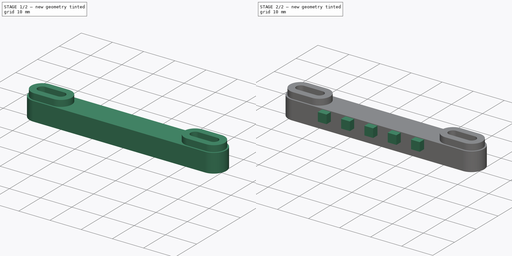
[diagram: build sequence overview — one tinted view per stage of 2, left to right]
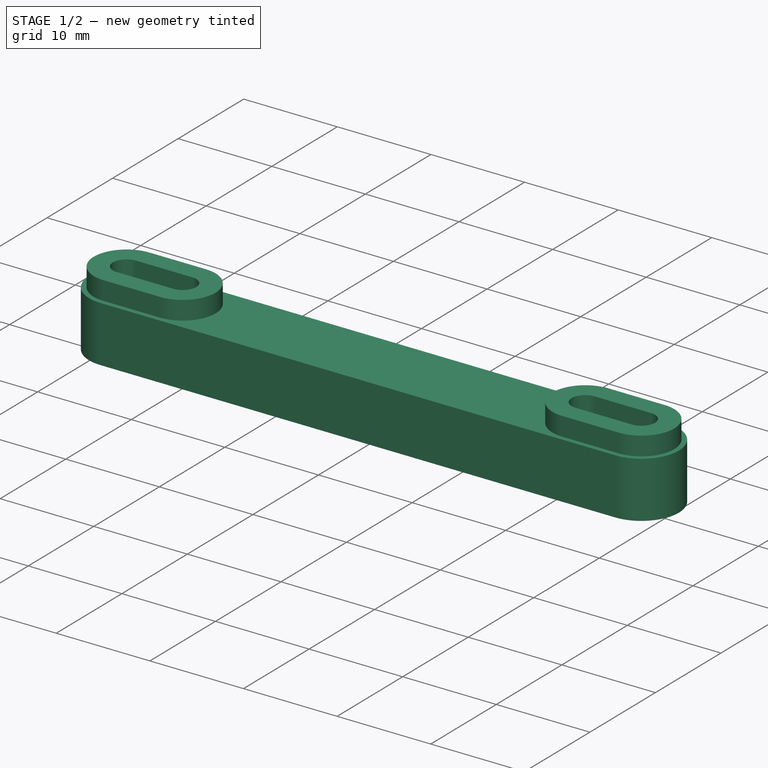
[diagram: stage 1 of 2 — iso view after this stage's code; geometry added in this stage tinted green]
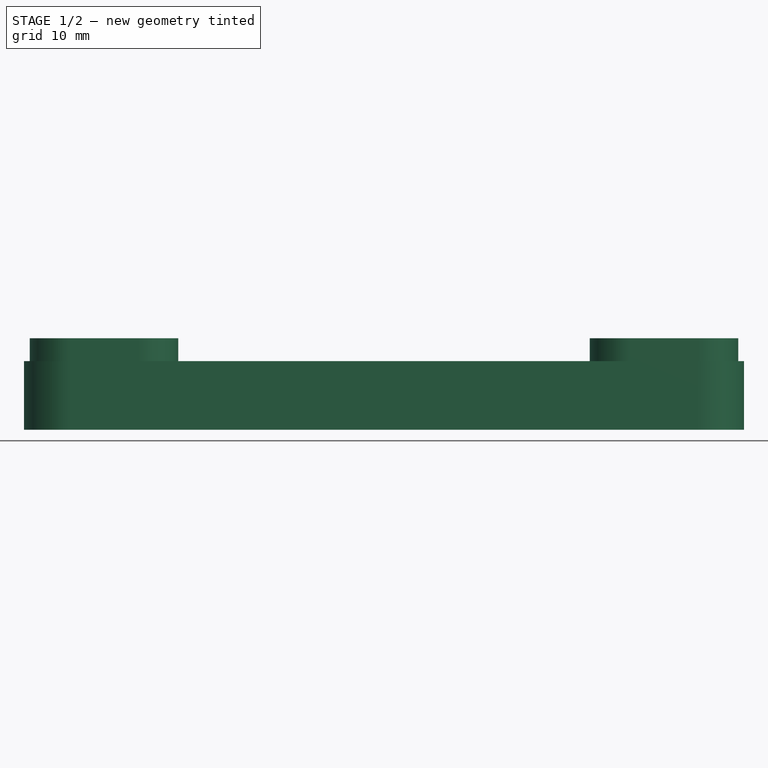
[diagram: stage 1 of 2 — front view after this stage's code; geometry added in this stage tinted green]
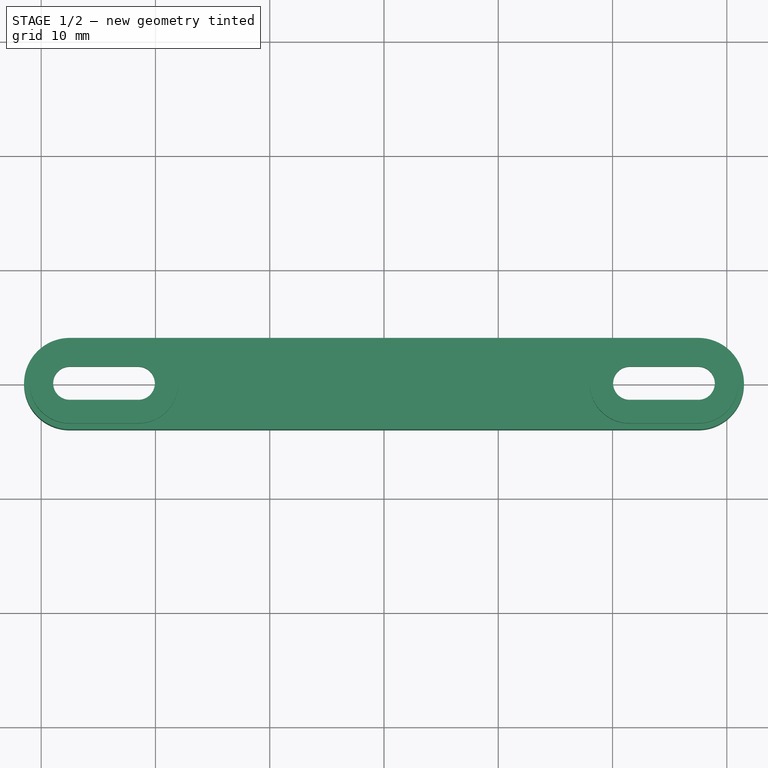
[diagram: stage 1 of 2 — top view after this stage's code; geometry added in this stage tinted green]
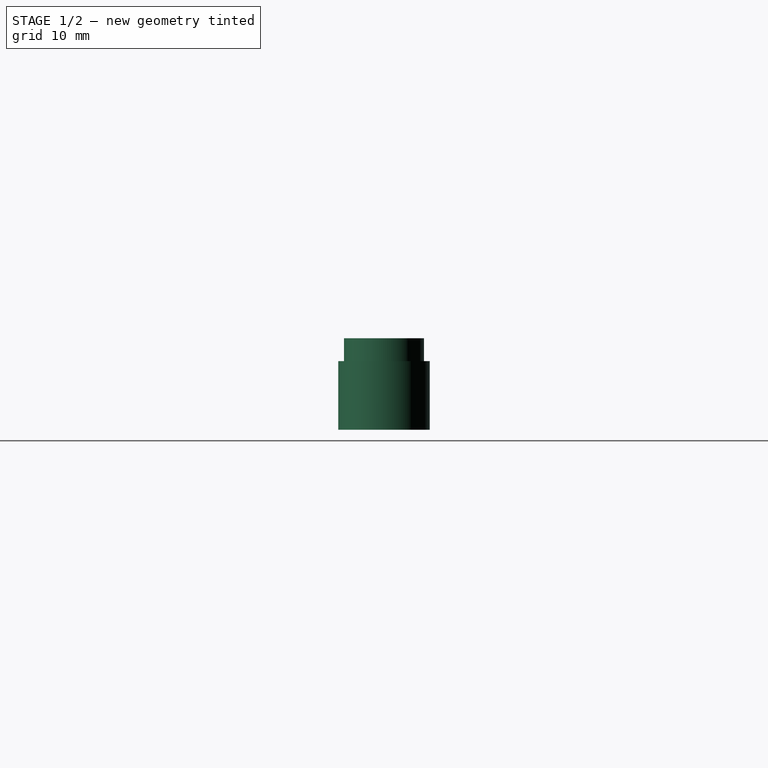
[diagram: stage 1 of 2 — right view after this stage's code; geometry added in this stage tinted green]
FCSTD DOCUMENT  (FreeCAD 0.16R4928 (Git))
Label: sujetador_w_s_h_vertial_v2
License: CreativeCommons Attribution-ShareAlike
LicenseURL: http://creativecommons.org/licenses/by-sa/4.0/
objects: Sketcher::SketchObject×3, PartDesign::Pad×3, PartDesign::LinearPattern×1
note: 10 computed .brp shape members not serialized (recipe doc carries the construction recipe); baked Part::Feature solids carry a one-line shape summary decoded from their .brp

FEATURE [Sketcher::SketchObject] Sketch
  sketch-geometry (16):
    g0: LineSegment StartX=-27.5 StartY=4 StartZ=0 EndX=27.5 EndY=4 EndZ=0
    g1: LineSegment [constr] StartX=27.5 StartY=4 StartZ=0 EndX=27.5 EndY=-4 EndZ=0
    g2: LineSegment StartX=27.5 StartY=-4 StartZ=0 EndX=-27.5 EndY=-4 EndZ=0
    g3: LineSegment [constr] StartX=-27.5 StartY=-4 StartZ=0 EndX=-27.5 EndY=4 EndZ=0
    g4: ArcOfCircle CenterX=27.5 CenterY=0 CenterZ=0 NormalX=0 NormalY=0 NormalZ=1 Radius=4 StartAngle=4.71239 EndAngle=7.85398
    g5: ArcOfCircle CenterX=-27.5 CenterY=0 CenterZ=0 NormalX=0 NormalY=0 NormalZ=1 Radius=4 StartAngle=1.5708 EndAngle=4.71239
    g6: ArcOfCircle CenterX=-27.5 CenterY=0 CenterZ=0 NormalX=0 NormalY=0 NormalZ=1 Radius=3.2 StartAngle=1.5708 EndAngle=4.71239
    g7: ArcOfCircle CenterX=-21.5 CenterY=0 CenterZ=0 NormalX=0 NormalY=0 NormalZ=1 Radius=3.2 StartAngle=4.71239 EndAngle=7.85398
    g8: LineSegment StartX=-27.5 StartY=-3.2 StartZ=0 EndX=-21.5 EndY=-3.2 EndZ=0
    g9: LineSegment StartX=-27.5 StartY=3.2 StartZ=0 EndX=-21.5 EndY=3.2 EndZ=0
    g10: ArcOfCircle CenterX=21.5 CenterY=0 CenterZ=0 NormalX=0 NormalY=0 NormalZ=1 Radius=3.2 StartAngle=1.5708 EndAngle=4.71239
    g11: ArcOfCircle CenterX=27.5 CenterY=0 CenterZ=0 NormalX=0 NormalY=0 NormalZ=1 Radius=3.2 StartAngle=4.71239 EndAngle=7.85398
    g12: LineSegment StartX=21.5 StartY=-3.2 StartZ=0 EndX=27.5 EndY=-3.2 EndZ=0
    g13: LineSegment StartX=21.5 StartY=3.2 StartZ=0 EndX=27.5 EndY=3.2 EndZ=0
    g14: GeomPoint [constr] X=-31.5 Y=0 Z=0
    g15: GeomPoint [constr] X=31.5 Y=0 Z=0
  constraints (40):
    c: Coincident(g0,g1)
    c: Coincident(g1,g2)
    c: Coincident(g2,g3)
    c: Coincident(g3,g0)
    c: Horizontal(g0)
    c: Horizontal(g2)
    c: Vertical(g1)
    c: Vertical(g3)
    c: Symmetric(g0,g1,g-1)
    c: PointOnObject(g4,g-1)
    c: Coincident(g4,g0)
    c: Coincident(g4,g1)
    c: PointOnObject(g4,g1)
    c: PointOnObject(g5,g3)
    c: Coincident(g5,g0)
    c: Coincident(g5,g2)
    c: Tangent(g6,g9) = 1.5708
    c: Tangent(g6,g8) = -1.5708
    c: Tangent(g8,g7) = -1.5708
    c: Tangent(g9,g7) = 1.5708
    c: Horizontal(g8)
    c: Equal(g6,g7)
    c: Coincident(g6,g5)
    c: Radius(g7) = 3.2
    c: DistanceX(g8) = 6
    c: Tangent(g10,g13) = 1.5708
    c: Tangent(g10,g12) = -1.5708
    c: Tangent(g12,g11) = -1.5708
    c: Tangent(g13,g11) = 1.5708
    c: Horizontal(g12)
    c: Equal(g10,g11)
    c: Coincident(g11,g4)
    c: Equal(g10,g7)
    c: Equal(g9,g13)
    c: DistanceY(g1) = -8
    c: DistanceX(g15,g14) = -63
    c: PointOnObject(g14,g-1)
    c: PointOnObject(g14,g5)
    c: PointOnObject(g15,g-1)
    c: PointOnObject(g15,g4)
FEATURE [PartDesign::Pad] Pad
  Length = 6
  Length2 = 100
  Sketch = -> Sketch
  Type = 0
FEATURE [Sketcher::SketchObject] Sketch001
  ExternalGeometry = -> [Pad]
  Placement = pos=(0,0,6) rot=(0,0,1;0rad)
  Support = -> Pad [Face14]
  sketch-geometry (16):
    g0: ArcOfCircle CenterX=-27.5 CenterY=0 CenterZ=0 NormalX=0 NormalY=0 NormalZ=1 Radius=3.5 StartAngle=1.5708 EndAngle=4.71239
    g1: ArcOfCircle CenterX=-21.5 CenterY=0 CenterZ=0 NormalX=0 NormalY=0 NormalZ=1 Radius=3.5 StartAngle=4.71239 EndAngle=7.85398
    g2: LineSegment StartX=-27.5 StartY=-3.5 StartZ=0 EndX=-21.5 EndY=-3.5 EndZ=0
    g3: LineSegment StartX=-27.5 StartY=3.5 StartZ=0 EndX=-21.5 EndY=3.5 EndZ=0
    g4: ArcOfCircle CenterX=-27.5 CenterY=0 CenterZ=0 NormalX=0 NormalY=0 NormalZ=1 Radius=1.45 StartAngle=1.5708 EndAngle=4.71239
    g5: ArcOfCircle CenterX=-21.5 CenterY=0 CenterZ=0 NormalX=0 NormalY=0 NormalZ=1 Radius=1.45 StartAngle=4.71239 EndAngle=7.85398
    g6: LineSegment StartX=-27.5 StartY=-1.45 StartZ=0 EndX=-21.5 EndY=-1.45 EndZ=0
    g7: LineSegment StartX=-27.5 StartY=1.45 StartZ=0 EndX=-21.5 EndY=1.45 EndZ=0
    g8: ArcOfCircle CenterX=21.5 CenterY=0 CenterZ=0 NormalX=0 NormalY=0 NormalZ=1 Radius=3.5 StartAngle=1.5708 EndAngle=4.71239
    g9: ArcOfCircle CenterX=27.5 CenterY=0 CenterZ=0 NormalX=0 NormalY=0 NormalZ=1 Radius=3.5 StartAngle=4.71238 EndAngle=7.85398
    g10: LineSegment StartX=21.5 StartY=-3.5 StartZ=0 EndX=27.5 EndY=-3.5 EndZ=0
    g11: LineSegment StartX=21.5 StartY=3.5 StartZ=0 EndX=27.5 EndY=3.5 EndZ=0
    g12: ArcOfCircle CenterX=21.5 CenterY=0 CenterZ=0 NormalX=0 NormalY=0 NormalZ=1 Radius=1.45 StartAngle=1.5708 EndAngle=4.71239
    g13: ArcOfCircle CenterX=27.5 CenterY=0 CenterZ=0 NormalX=0 NormalY=0 NormalZ=1 Radius=1.45 StartAngle=4.71239 EndAngle=7.85398
    g14: LineSegment StartX=21.5 StartY=-1.45 StartZ=0 EndX=27.5 EndY=-1.45 EndZ=0
    g15: LineSegment StartX=21.5 StartY=1.45 StartZ=0 EndX=27.5 EndY=1.45 EndZ=0
  constraints (38):
    c: Tangent(g0,g3) = 1.5708
    c: Tangent(g0,g2) = -1.5708
    c: Tangent(g2,g1) = -1.5708
    c: Tangent(g3,g1) = 1.5708
    c: Horizontal(g2)
    c: Tangent(g4,g7) = 1.5708
    c: Tangent(g4,g6) = -1.5708
    c: Tangent(g6,g5) = -1.5708
    c: Tangent(g7,g5) = 1.5708
    c: Horizontal(g6)
    c: Equal(g4,g5)
    c: Coincident(g1,g-4)
    c: Radius(g5) = 1.45
    c: DistanceX(g7) = 6
    c: Coincident(g5,g1)
    c: Tangent(g8,g10) = -1.5708
    c: Tangent(g11,g9) = 1.5708
    c: Coincident(g-5,g8)
    c: Coincident(g9,g-6)
    c: Tangent(g12,g15) = 1.5708
    c: Tangent(g12,g14) = -1.5708
    c: Tangent(g14,g13) = -1.5708
    c: Tangent(g15,g13) = 1.5708
    c: Horizontal(g14)
    c: Equal(g12,g13)
    c: Equal(g15,g7)
    c: Equal(g12,g5)
    c: Coincident(g12,g8)
    c: Horizontal(g3)
    c: Coincident(g4,g0)
    c: Equal(g3,g7)
    c: Radius(g1) = 3.5
    c: Tangent(g11,g8) = 1.5708
    c: Horizontal(g10)
    c: Horizontal(g11)
    c: Coincident(g9,g10)
    c: Equal(g11,g15)
    c: Equal(g8,g1)
FEATURE [PartDesign::Pad] Pad001
  Length = 2
  Length2 = 100
  Sketch = -> Sketch001
  Type = 0
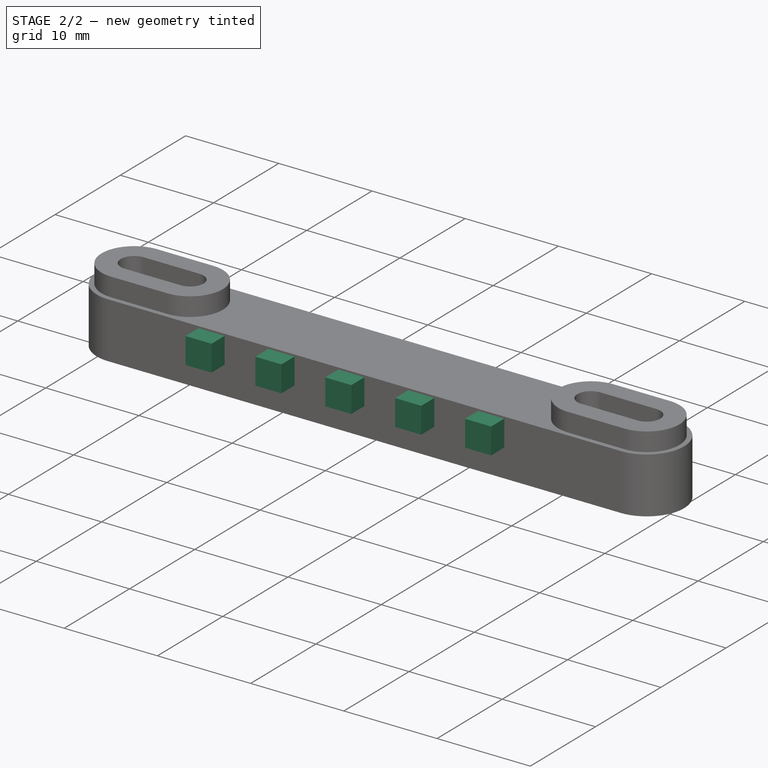
[diagram: stage 2 of 2 — iso view after this stage's code; geometry added in this stage tinted green]
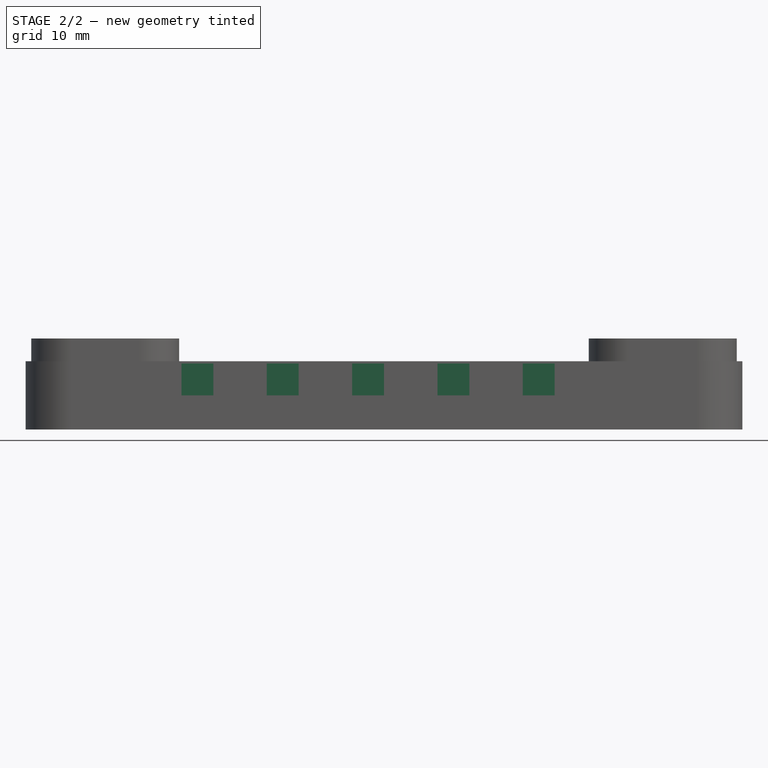
[diagram: stage 2 of 2 — front view after this stage's code; geometry added in this stage tinted green]
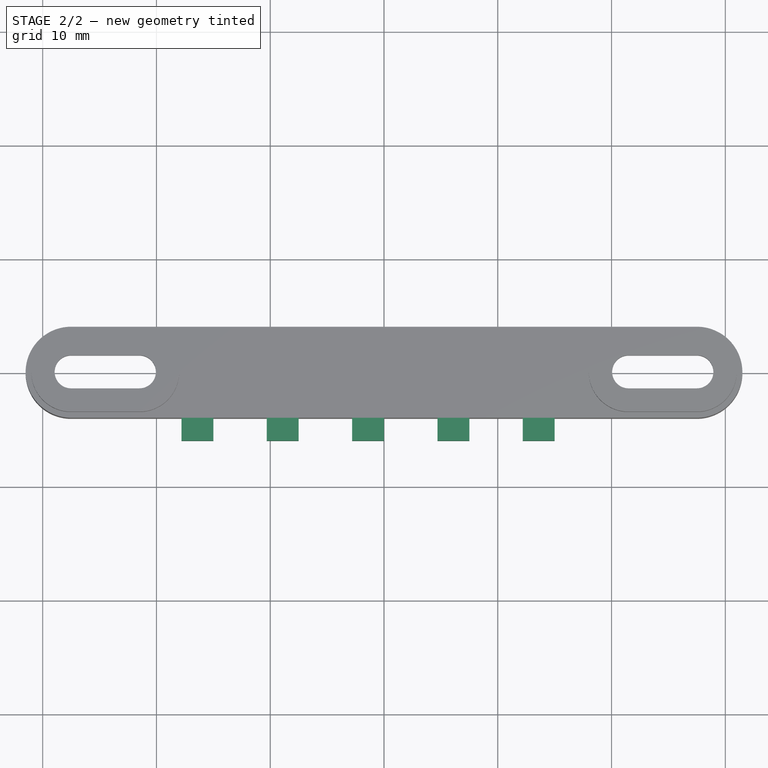
[diagram: stage 2 of 2 — top view after this stage's code; geometry added in this stage tinted green]
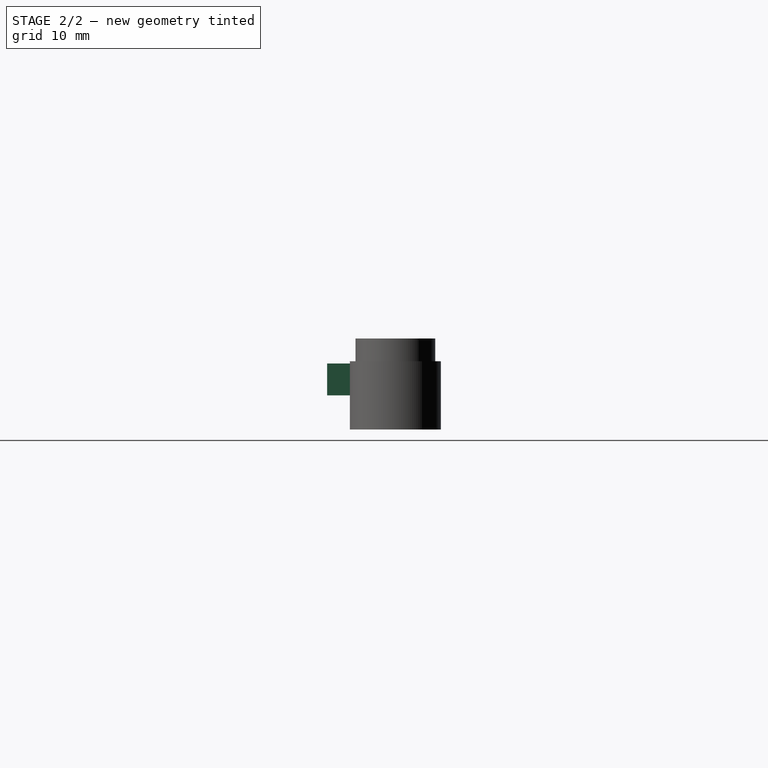
[diagram: stage 2 of 2 — right view after this stage's code; geometry added in this stage tinted green]
FEATURE [Sketcher::SketchObject] Sketch002
  Placement = pos=(0,-4,0) rot=(1,0,0;1.5708rad)
  Support = -> Pad001 [Face6]
  sketch-geometry (6):
    g0: LineSegment StartX=12.2 StartY=5.8 StartZ=0 EndX=15 EndY=5.8 EndZ=0
    g1: LineSegment StartX=15 StartY=5.8 StartZ=0 EndX=15 EndY=3 EndZ=0
    g2: LineSegment StartX=15 StartY=3 StartZ=0 EndX=12.2 EndY=3 EndZ=0
    g3: LineSegment StartX=12.2 StartY=3 StartZ=0 EndX=12.2 EndY=5.8 EndZ=0
    g4: LineSegment [constr] StartX=-15 StartY=0 StartZ=0 EndX=15 EndY=0 EndZ=0
    g5: LineSegment [constr] StartX=15 StartY=0 StartZ=0 EndX=15 EndY=3 EndZ=0
  constraints (18):
    c: Coincident(g0,g1)
    c: Coincident(g1,g2)
    c: Coincident(g2,g3)
    c: Coincident(g3,g0)
    c: Horizontal(g0)
    c: Horizontal(g2)
    c: Vertical(g1)
    c: Vertical(g3)
    c: Equal(g0,g1)
    c: DistanceX(g2) = -2.8
    c: DistanceY(g1) = 3
    c: Horizontal(g4)
    c: DistanceX(g4) = 30
    c: Symmetric(g4,g4,g-2)
    c: PointOnObject(g4,g-1)
    c: Coincident(g5,g4)
    c: Vertical(g5)
    c: Coincident(g5,g1)
FEATURE [PartDesign::Pad] Pad002
  Length = 2
  Length2 = 100
  Sketch = -> Sketch002
  Type = 0
FEATURE [PartDesign::LinearPattern] LinearPattern
  Direction = -> Sketch002 [Axis0]
  Length = 30
  Occurrences = 5
  Originals = -> [Pad002]
  Reversed = true
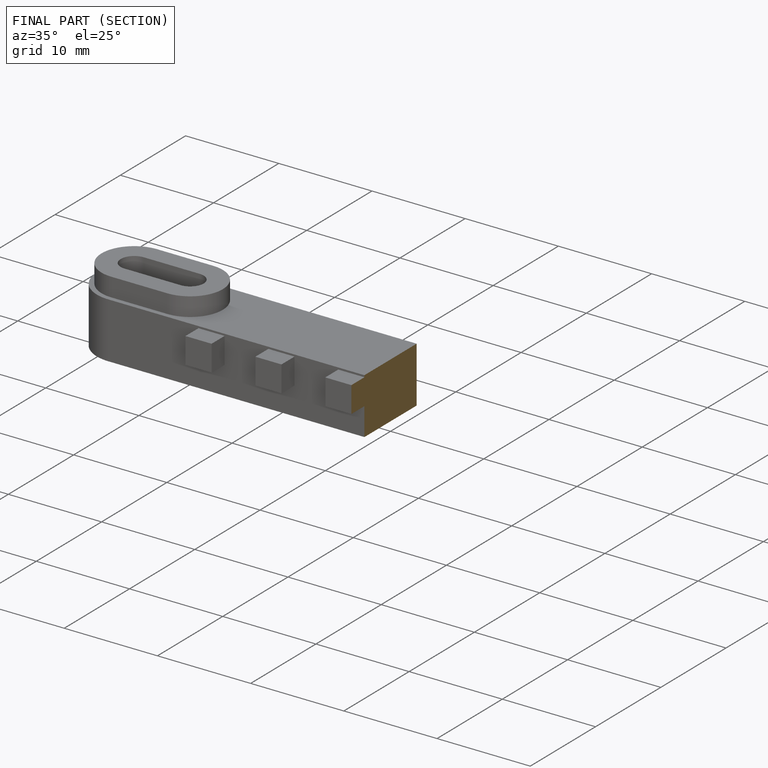
[diagram: finished part — half-section view (interior)]
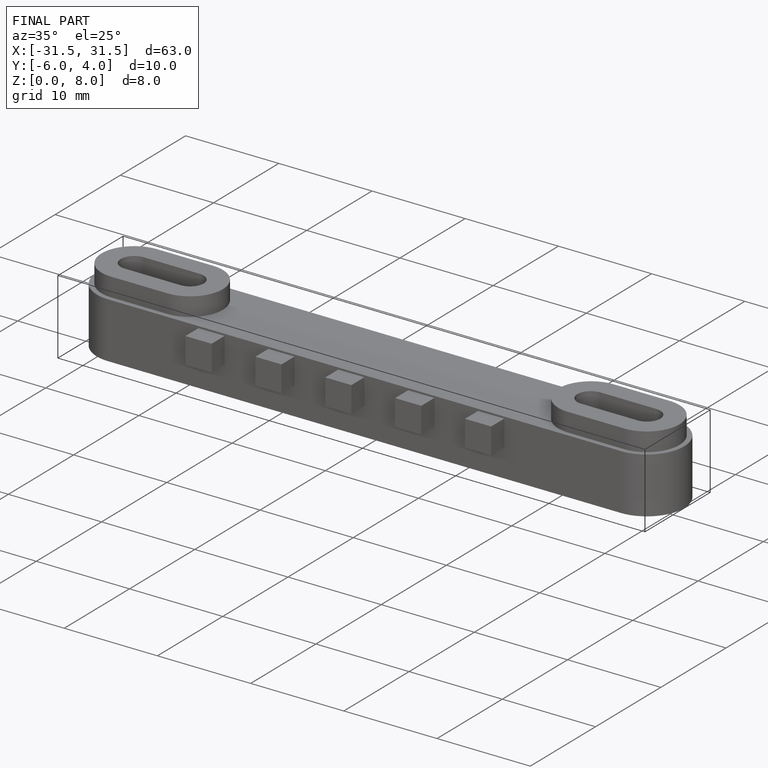
[diagram: finished part — iso view with bounding-box wireframe]
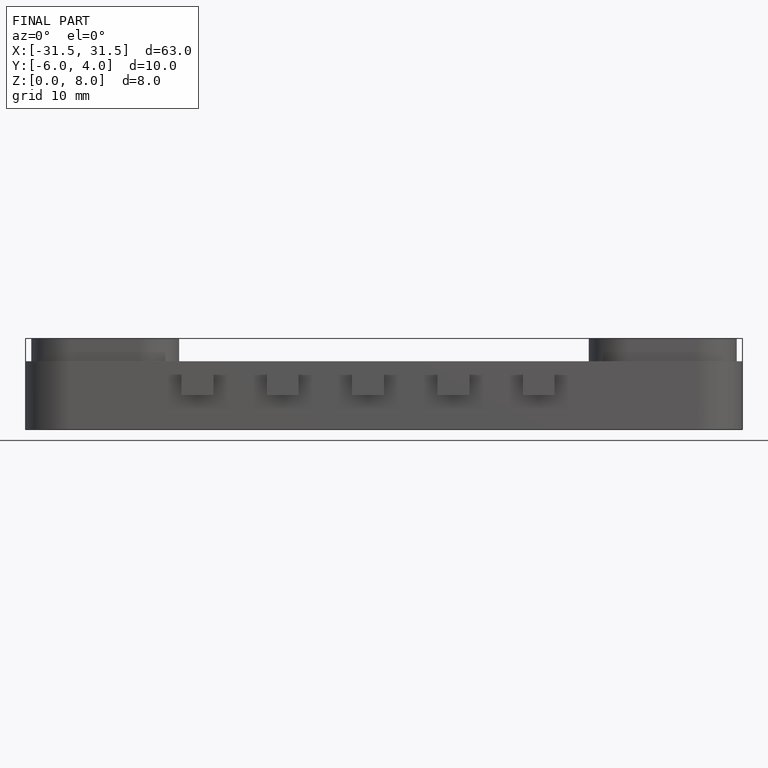
[diagram: finished part — front view with bounding-box wireframe]
